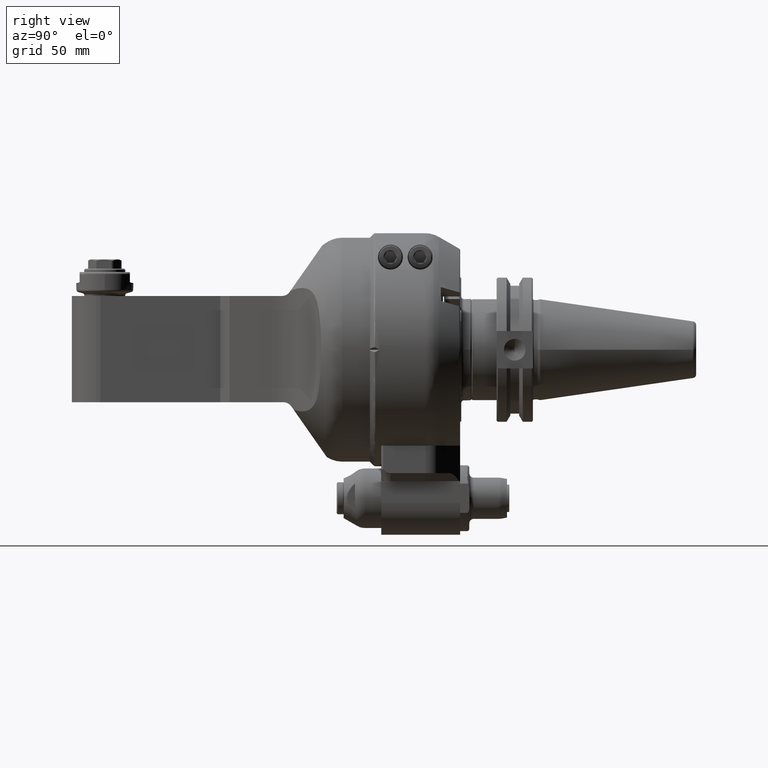
[diagram: clean part render]
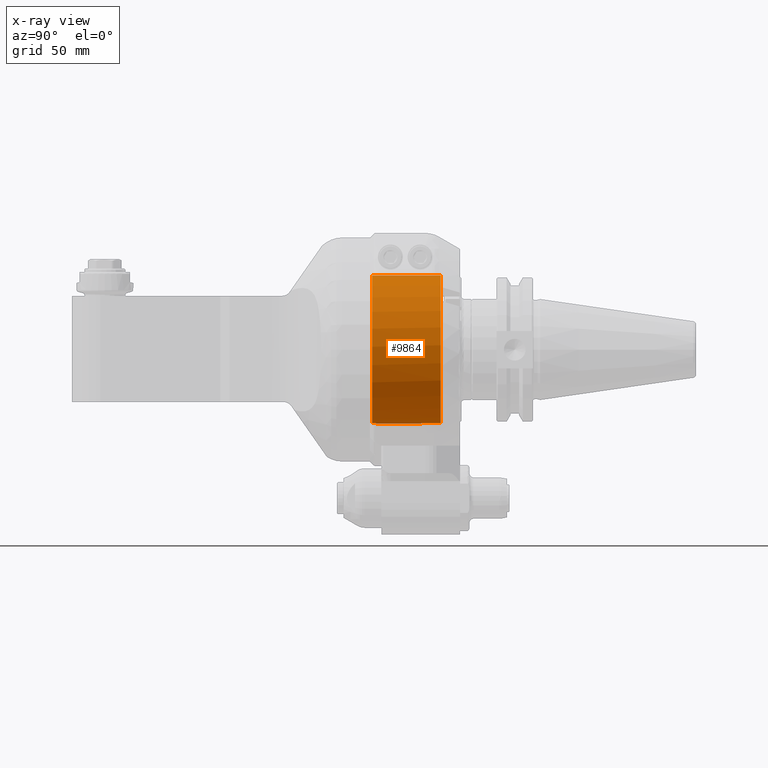
[diagram: x-ray — body ghosted, one internal face saturated and labeled with its STEP entity id]
A machine part, right view, then the same camera in x-ray: the body is ghosted and one INTERNAL B-rep face — a face not visible from any outside direction — is saturated and labeled: STEP entity #9864.
In plain terms, the highlighted cylindrical surface (partial cylindrical patch) has radius 32.5 mm, axis along (0, -1, 0).
Its self-contained STEP definition (entity closure, byte-faithful):
#593=CYLINDRICAL_SURFACE('',#10855,32.5);
#965=CIRCLE('',#10806,32.5);
#987=CIRCLE('',#10856,32.5);
#988=CIRCLE('',#10857,32.5);
#989=CIRCLE('',#10858,32.5);
#1532=FACE_OUTER_BOUND('',#2196,.T.);
#2196=EDGE_LOOP('',(#7810,#7811,#7812,#7813,#7814,#7815,#7816,#7817));
#2919=LINE('',#17848,#3619);
#2920=LINE('',#17851,#3620);
#2921=LINE('',#17855,#3621);
#2922=LINE('',#17859,#3622);
#3619=VECTOR('',#13050,8.5);
#3620=VECTOR('',#13053,8.5);
#3621=VECTOR('',#13056,30.);
#3622=VECTOR('',#13059,29.99999999998);
#4431=VERTEX_POINT('',#16956);
#4432=VERTEX_POINT('',#16958);
#4470=VERTEX_POINT('',#17846);
#4471=VERTEX_POINT('',#17850);
#4472=VERTEX_POINT('',#17852);
#4473=VERTEX_POINT('',#17854);
#4474=VERTEX_POINT('',#17856);
#4475=VERTEX_POINT('',#17858);
#5603=EDGE_CURVE('',#4432,#4431,#965,.T.);
#5673=EDGE_CURVE('',#4431,#4470,#2919,.T.);
#5674=EDGE_CURVE('',#4432,#4471,#2920,.T.);
#5675=EDGE_CURVE('',#4472,#4470,#987,.T.);
#5676=EDGE_CURVE('',#4472,#4473,#2921,.T.);
#5677=EDGE_CURVE('',#4474,#4473,#988,.T.);
#5678=EDGE_CURVE('',#4474,#4475,#2922,.T.);
#5679=EDGE_CURVE('',#4471,#4475,#989,.T.);
#7810=ORIENTED_EDGE('',*,*,#5674,.F.);
#7811=ORIENTED_EDGE('',*,*,#5603,.T.);
#7812=ORIENTED_EDGE('',*,*,#5673,.T.);
#7813=ORIENTED_EDGE('',*,*,#5675,.F.);
#7814=ORIENTED_EDGE('',*,*,#5676,.T.);
#7815=ORIENTED_EDGE('',*,*,#5677,.F.);
#7816=ORIENTED_EDGE('',*,*,#5678,.T.);
#7817=ORIENTED_EDGE('',*,*,#5679,.F.);
#9864=ADVANCED_FACE('',(#1532),#593,.F.);
#10806=AXIS2_PLACEMENT_3D('',#16959,#12919,#12920);
#10855=AXIS2_PLACEMENT_3D('',#17849,#13051,#13052);
#10856=AXIS2_PLACEMENT_3D('',#17853,#13054,#13055);
#10857=AXIS2_PLACEMENT_3D('',#17857,#13057,#13058);
#10858=AXIS2_PLACEMENT_3D('',#17860,#13060,#13061);
#12919=DIRECTION('center_axis',(0.,1.,0.));
#12920=DIRECTION('ref_axis',(0.164179104477598,0.,-0.986430545782588));
#13050=DIRECTION('',(0.,1.,0.));
#13051=DIRECTION('center_axis',(0.,-1.,0.));
#13052=DIRECTION('ref_axis',(1.38678298153134E-13,0.,-1.));
#13053=DIRECTION('',(0.,1.,0.));
#13054=DIRECTION('center_axis',(0.,-1.,0.));
#13055=DIRECTION('ref_axis',(-0.0461538461538519,0.,0.998934343430642));
#13056=DIRECTION('',(0.,-1.,0.));
#13057=DIRECTION('center_axis',(0.,1.,0.));
#13058=DIRECTION('ref_axis',(0.,0.,-1.));
#13059=DIRECTION('',(3.148370453234E-13,1.,-1.421085471521E-14));
#13060=DIRECTION('center_axis',(0.,-1.,0.));
#13061=DIRECTION('ref_axis',(0.164179104477598,0.,-0.986430545782588));
#16956=CARTESIAN_POINT('',(-5.335820895522,22.5,-32.05899273793));
#16958=CARTESIAN_POINT('',(5.335820895522,22.5,-32.05899273793));
#16959=CARTESIAN_POINT('Origin',(0.,22.5,0.));
#17846=CARTESIAN_POINT('',(-5.335820895522,31.,-32.05899273793));
#17848=CARTESIAN_POINT('',(-5.335820895522,22.5,-32.05899273793));
#17849=CARTESIAN_POINT('Origin',(0.,16.5,0.));
#17850=CARTESIAN_POINT('',(5.335820895522,31.,-32.05899273793));
#17851=CARTESIAN_POINT('',(5.335820895522,22.5,-32.05899273793));
#17852=CARTESIAN_POINT('',(-1.5,31.,32.4653661615));
#17853=CARTESIAN_POINT('Origin',(0.,31.,0.));
#17854=CARTESIAN_POINT('',(-1.5,1.,32.4653661615));
#17855=CARTESIAN_POINT('',(-1.5,31.,32.4653661615));
#17856=CARTESIAN_POINT('',(1.499999999991,1.000000000023,32.4653661615));
#17857=CARTESIAN_POINT('Origin',(0.,0.9999999999999,0.));
#17858=CARTESIAN_POINT('',(1.5,31.,32.4653661615));
#17859=CARTESIAN_POINT('',(1.499999999991,1.000000000023,32.4653661615));
#17860=CARTESIAN_POINT('Origin',(0.,31.,0.));